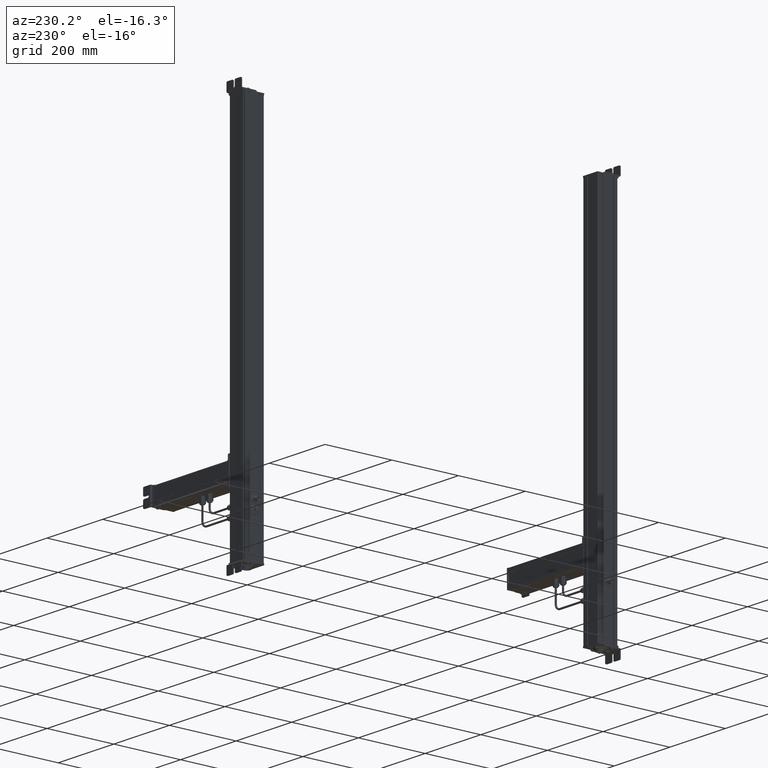
[diagram: clean part render]
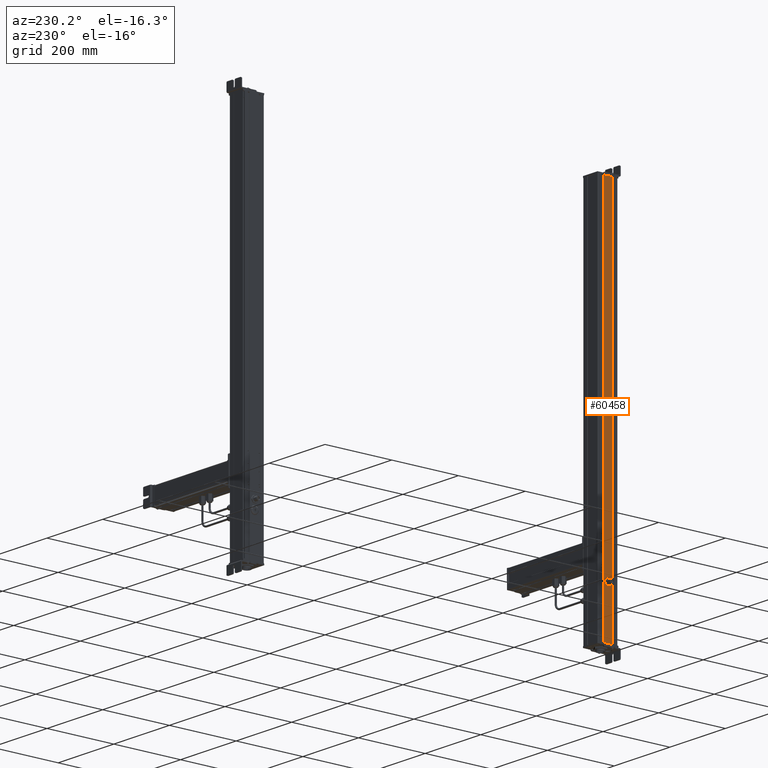
[diagram: same view with one face highlighted and labeled with its STEP entity id]
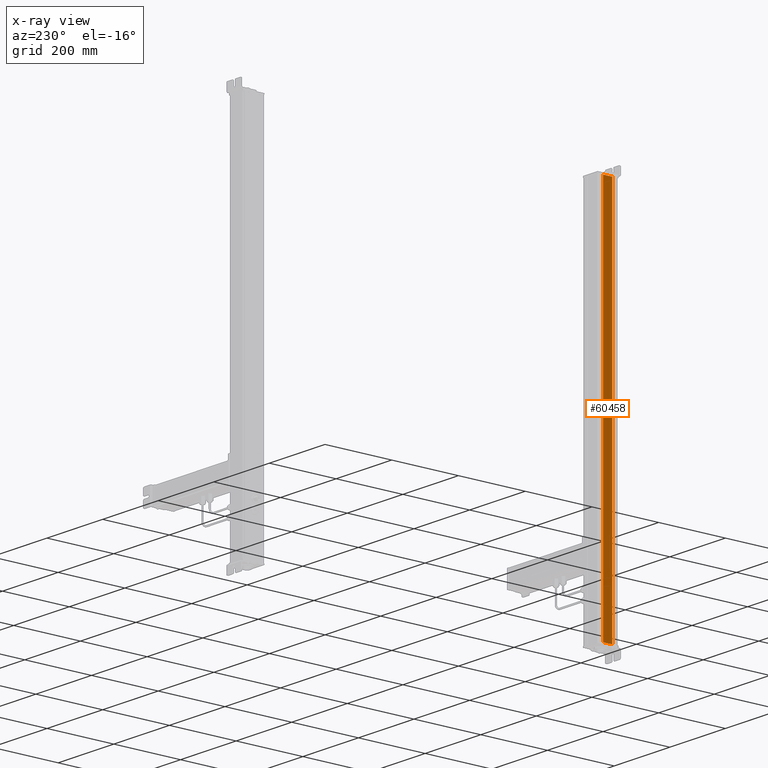
[diagram: x-ray of the same camera — body ghosted, the highlighted face saturated]
A machine part, auxiliary view. The second image highlights one B-rep face of the part: STEP entity #60458.
The next image is the same camera in x-ray: the body ghosted, the highlighted face saturated — about 0% of this face is hidden behind the body in this view.
In plain terms, the highlighted planar face has unit normal (-1, 0, 0).
Its self-contained STEP definition (entity closure, byte-faithful):
#59699=CARTESIAN_POINT('Axis2P3D Location',(613.195548937,133.067790275,0.)) ;
#60411=CARTESIAN_POINT('Vertex',(613.195548938,166.010394004,0.)) ;
#60414=CARTESIAN_POINT('Line Origine',(613.195548938,166.010394004,561.)) ;
#60418=CARTESIAN_POINT('Vertex',(613.195548938,166.010394004,1122.)) ;
#60433=CARTESIAN_POINT('Line Origine',(613.195548937,152.38909214,0.)) ;
#60437=CARTESIAN_POINT('Vertex',(613.195548937,138.767790274,0.)) ;
#60440=CARTESIAN_POINT('Line Origine',(613.195548937,138.767790274,561.)) ;
#60444=CARTESIAN_POINT('Vertex',(613.195548937,138.767790274,1122.)) ;
#60447=CARTESIAN_POINT('Line Origine',(613.195548937,152.38909214,1122.)) ;
#59700=DIRECTION('Axis2P3D Direction',(-1.,0.,0.)) ;
#59701=DIRECTION('Axis2P3D XDirection',(0.,-1.,0.)) ;
#60415=DIRECTION('Vector Direction',(0.,0.,1.)) ;
#60434=DIRECTION('Vector Direction',(0.,-1.,0.)) ;
#60441=DIRECTION('Vector Direction',(0.,0.,1.)) ;
#60448=DIRECTION('Vector Direction',(0.,-1.,0.)) ;
#59702=AXIS2_PLACEMENT_3D('Plane Axis2P3D',#59699,#59700,#59701) ;
#60453=ORIENTED_EDGE('',*,*,#60420,.F.) ;
#60454=ORIENTED_EDGE('',*,*,#60439,.T.) ;
#60455=ORIENTED_EDGE('',*,*,#60446,.T.) ;
#60456=ORIENTED_EDGE('',*,*,#60451,.F.) ;
#60416=VECTOR('Line Direction',#60415,1.) ;
#60435=VECTOR('Line Direction',#60434,1.) ;
#60442=VECTOR('Line Direction',#60441,1.) ;
#60449=VECTOR('Line Direction',#60448,1.) ;
#60458=ADVANCED_FACE('Body.2',(#60457),#59703,.T.) ;
#60420=EDGE_CURVE('',#60412,#60419,#60417,.T.) ;
#60439=EDGE_CURVE('',#60412,#60438,#60436,.T.) ;
#60446=EDGE_CURVE('',#60438,#60445,#60443,.T.) ;
#60451=EDGE_CURVE('',#60419,#60445,#60450,.T.) ;
#60452=EDGE_LOOP('',(#60453,#60454,#60455,#60456)) ;
#60457=FACE_OUTER_BOUND('',#60452,.T.) ;
#60417=LINE('Line',#60414,#60416) ;
#60436=LINE('Line',#60433,#60435) ;
#60443=LINE('Line',#60440,#60442) ;
#60450=LINE('Line',#60447,#60449) ;
#59703=PLANE('Plane',#59702) ;
#60412=VERTEX_POINT('',#60411) ;
#60419=VERTEX_POINT('',#60418) ;
#60438=VERTEX_POINT('',#60437) ;
#60445=VERTEX_POINT('',#60444) ;